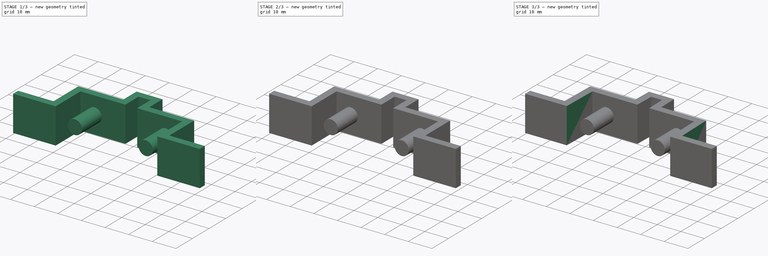
[diagram: build sequence overview — one tinted view per stage of 3, left to right]
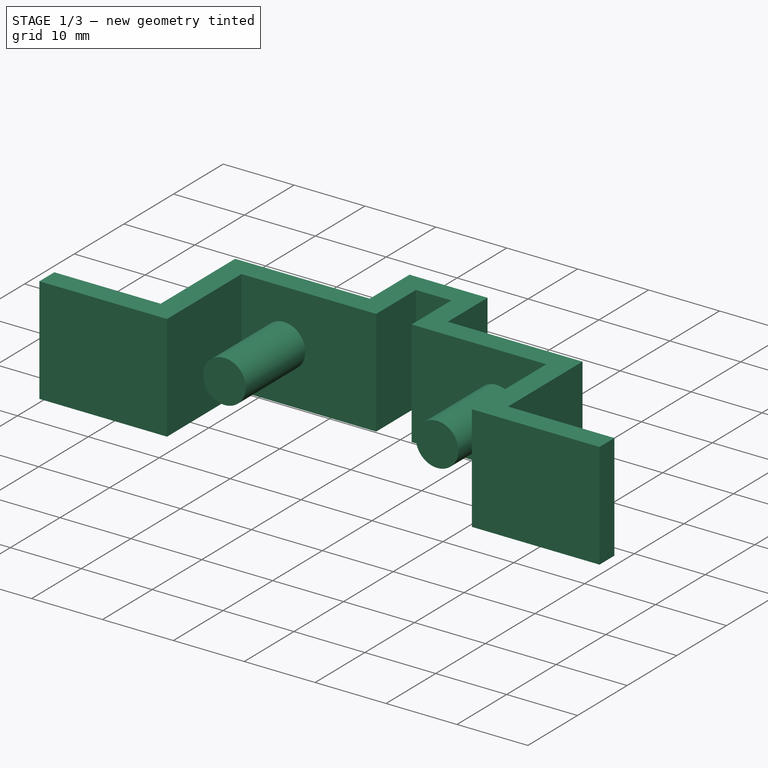
[diagram: stage 1 of 3 — iso view after this stage's code; geometry added in this stage tinted green]
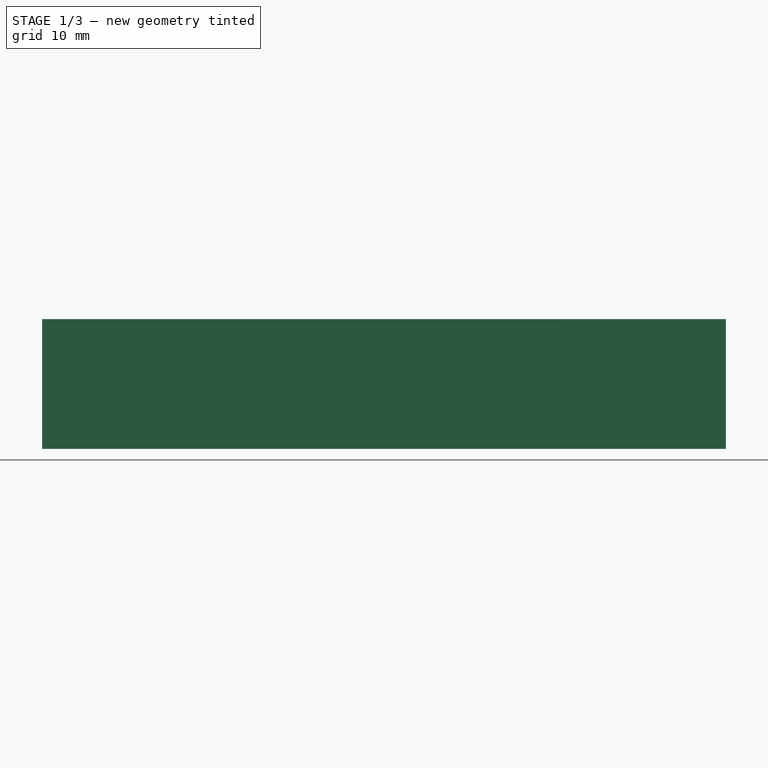
[diagram: stage 1 of 3 — front view after this stage's code; geometry added in this stage tinted green]
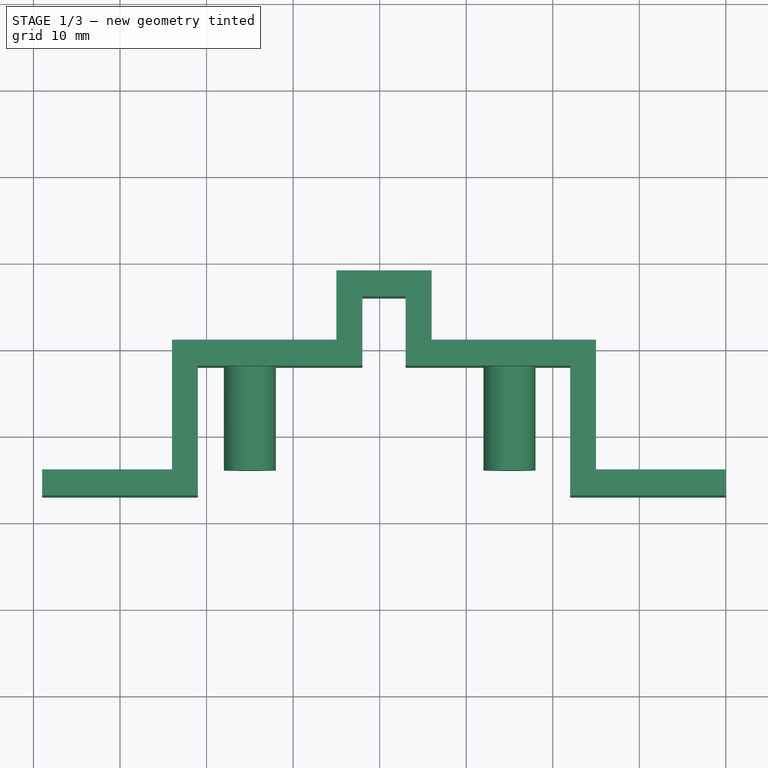
[diagram: stage 1 of 3 — top view after this stage's code; geometry added in this stage tinted green]
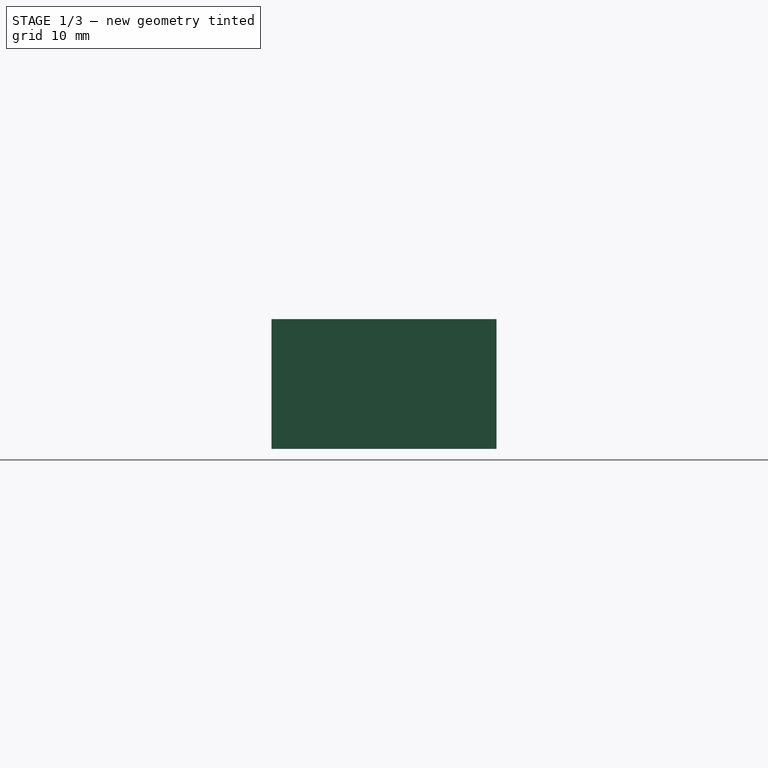
[diagram: stage 1 of 3 — right view after this stage's code; geometry added in this stage tinted green]
FCSTD DOCUMENT  (FreeCAD 0.16R6698 (Git))
Label: Plastic_Bus_Bar
License: All rights reserved
LicenseURL: http://en.wikipedia.org/wiki/All_rights_reserved
objects: Sketcher::SketchObject×3, PartDesign::Pad×2, PartDesign::Draft×2, PartDesign::Pocket×1
note: 11 computed .brp shape members not serialized (recipe doc carries the construction recipe); baked Part::Feature solids carry a one-line shape summary decoded from their .brp

FEATURE [Sketcher::SketchObject] Sketch
  sketch-geometry (20):
    g0: LineSegment StartX=-5 StartY=9 StartZ=0 EndX=6 EndY=9 EndZ=0
    g1: LineSegment StartX=3 StartY=6 StartZ=0 EndX=-2 EndY=6 EndZ=0
    g2: LineSegment StartX=40 StartY=-14 StartZ=0 EndX=40 EndY=-17 EndZ=0
    g3: LineSegment StartX=40 StartY=-17 StartZ=0 EndX=22 EndY=-17 EndZ=0
    g4: LineSegment StartX=-2 StartY=6 StartZ=0 EndX=-2 EndY=-2 EndZ=0
    g5: LineSegment StartX=-5 StartY=1 StartZ=0 EndX=-5 EndY=9 EndZ=0
    g6: LineSegment StartX=-21 StartY=-2 StartZ=0 EndX=-2 EndY=-2 EndZ=0
    g7: LineSegment StartX=6 StartY=1 StartZ=0 EndX=6 EndY=9 EndZ=0
    g8: LineSegment StartX=3 StartY=-2 StartZ=0 EndX=22 EndY=-2 EndZ=0
    g9: LineSegment StartX=25 StartY=1 StartZ=0 EndX=6 EndY=1 EndZ=0
    g10: LineSegment StartX=3 StartY=6 StartZ=0 EndX=3 EndY=-2 EndZ=0
    g11: LineSegment StartX=25 StartY=-14 StartZ=0 EndX=40 EndY=-14 EndZ=0
    g12: LineSegment StartX=-5 StartY=1 StartZ=0 EndX=-24 EndY=1 EndZ=0
    g13: LineSegment StartX=22 StartY=-2 StartZ=0 EndX=22 EndY=-17 EndZ=0
    g14: LineSegment StartX=25 StartY=1 StartZ=0 EndX=25 EndY=-14 EndZ=0
    g15: LineSegment StartX=-24 StartY=1 StartZ=0 EndX=-24 EndY=-14 EndZ=0
    g16: LineSegment StartX=-24 StartY=-14 StartZ=0 EndX=-39 EndY=-14 EndZ=0
    g17: LineSegment StartX=-39 StartY=-14 StartZ=0 EndX=-39 EndY=-17 EndZ=0
    g18: LineSegment StartX=-39 StartY=-17 StartZ=0 EndX=-21 EndY=-17 EndZ=0
    g19: LineSegment StartX=-21 StartY=-17 StartZ=0 EndX=-21 EndY=-2 EndZ=0
  constraints (62):
    c: Horizontal(g0)
    c: Horizontal(g1)
    c: Coincident(g2,g3)
    c: Horizontal(g3)
    c: Vertical(g2)
    c: Vertical(g4)
    c: Vertical(g5)
    c: Horizontal(g6)
    c: Vertical(g7)
    c: Coincident(g10,g8)
    c: Horizontal(g8)
    c: Horizontal(g9)
    c: Vertical(g10)
    c: Coincident(g4,g1)
    c: Coincident(g7,g9)
    c: Coincident(g11,g2)
    c: Horizontal(g11)
    c: Coincident(g12,g5)
    c: Horizontal(g12)
    c: DistanceX(g9,g9) = 19
    c: DistanceX(g8,g8) = 19
    c: DistanceX(g8,g7) = 3
    c: Coincident(g10,g1)
    c: Coincident(g13,g3)
    c: Vertical(g13)
    c: Coincident(g4,g6)
    c: DistanceY(g13,g14) = 3
    c: DistanceY(g8,g9) = 3
    c: DistanceY(g1,g0) = 3
    c: DistanceX(g0,g1) = 3
    c: DistanceY(g4,g5) = 3
    c: DistanceY(g3,g11) = 3
    c: Coincident(g14,g11)
    c: Vertical(g14)
    c: DistanceX(g3,g11) = 3
    c: DistanceX(g12,g12) = 19
    c: DistanceX(g6,g6) = 19
    c: DistanceX(g0,g0) = 11
    c: DistanceY(g7,g7) = 8
    c: DistanceY(g5,g5) = 8
    c: DistanceX(g11,g11) = 15
    c: Vertical(g15)
    c: Coincident(g15,g16)
    c: Horizontal(g16)
    c: Coincident(g16,g17)
    c: Vertical(g17)
    c: Coincident(g17,g18)
    c: Horizontal(g18)
    c: Coincident(g18,g19)
    c: Vertical(g19)
    c: DistanceX(g15,g19) = 3
    c: DistanceY(g17,g17) = 3
    c: DistanceX(g16,g16) = 15
    c: DistanceY(g18,g6) = 15
    c: DistanceY(g3,g8) = 15
    c: Coincident(g5,g0)
    c: Coincident(g7,g0)
    c: DistanceX(g4,g-1) = 2
    c: DistanceY(g18,g-1) = 17
    c: Coincident(g19,g6)
    c: Coincident(g12,g15)
    c: Coincident(g8,g13)
FEATURE [PartDesign::Pad] Pad
  Length = 15
  Length2 = 100
  Sketch = -> Sketch
  Type = 0
FEATURE [Sketcher::SketchObject] Sketch001
  Placement = pos=(0,-2,0) rot=(1,0,0;1.5708rad)
  Support = -> Pad [Face14]
  sketch-geometry (2):
    g0: Circle CenterX=-15 CenterY=7.5 CenterZ=0 NormalX=0 NormalY=0 NormalZ=1 Radius=3
    g1: Circle CenterX=15 CenterY=7.5 CenterZ=0 NormalX=0 NormalY=0 NormalZ=1 Radius=3
  constraints (6):
    c: Radius(g1) = 3
    c: Equal(g1,g0)
    c: DistanceX(g0,g1) = 30
    c: DistanceX(g-1,g1) = 15
    c: DistanceY(g0,g1) = 0
    c: DistanceY(g-1,g1) = 7.5
FEATURE [PartDesign::Pad] Pad001
  Length = 12
  Length2 = 100
  Sketch = -> Sketch001
  Type = 0
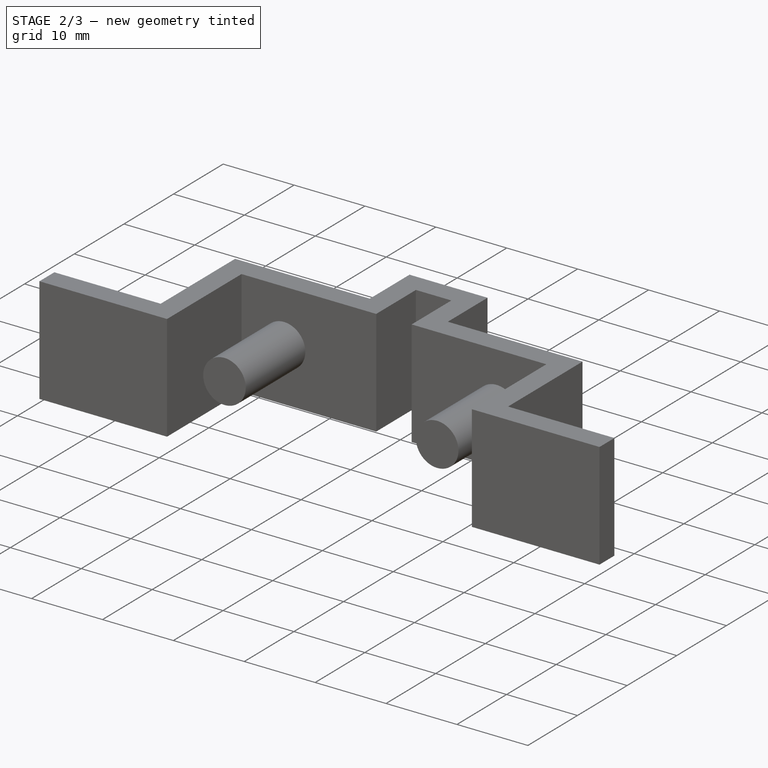
[diagram: stage 2 of 3 — iso view after this stage's code; geometry added in this stage tinted green]
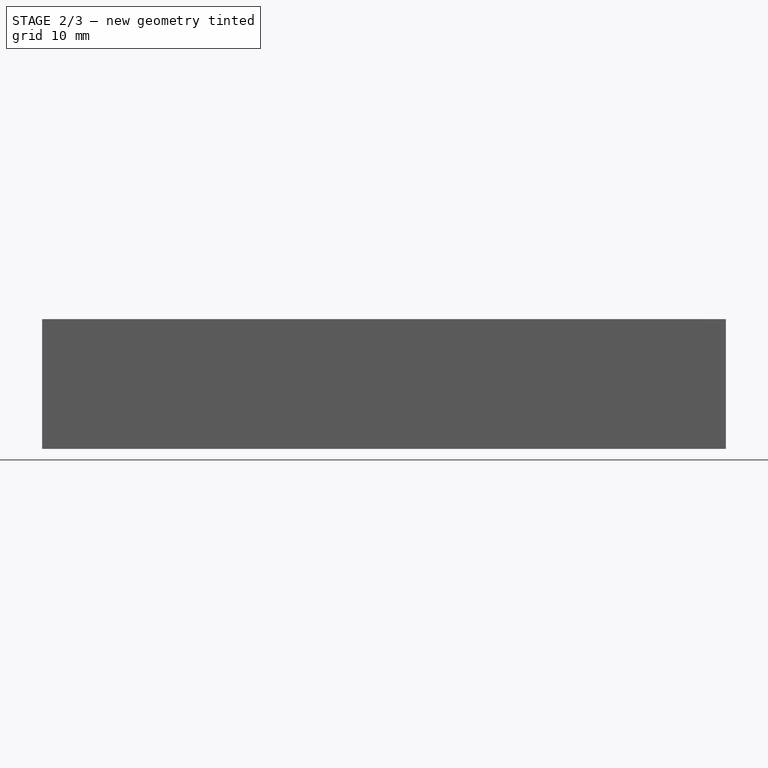
[diagram: stage 2 of 3 — front view after this stage's code; geometry added in this stage tinted green]
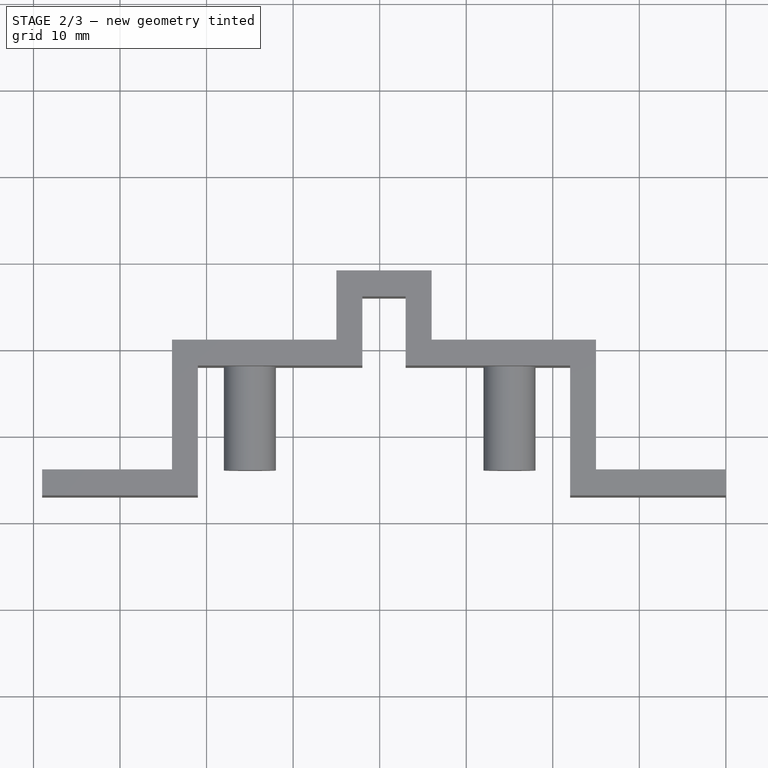
[diagram: stage 2 of 3 — top view after this stage's code; geometry added in this stage tinted green]
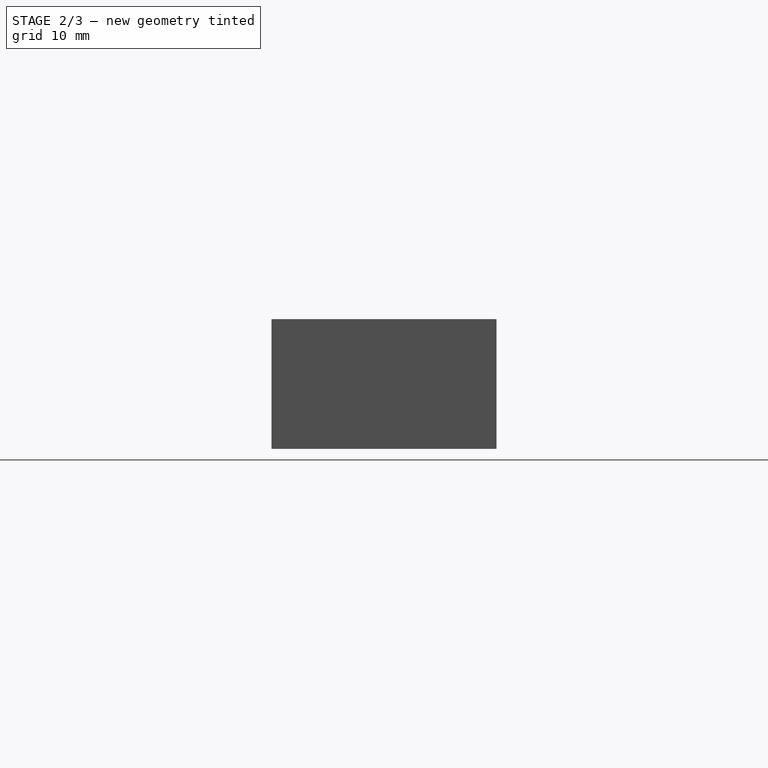
[diagram: stage 2 of 3 — right view after this stage's code; geometry added in this stage tinted green]
FEATURE [Sketcher::SketchObject] Sketch002
  Placement = pos=(0,1,0) rot=(0,0.707107,0.707107;3.14159rad)
  Support = -> Pad001 [Face2]
  sketch-geometry (2):
    g0: Circle CenterX=-15 CenterY=7.5 CenterZ=0 NormalX=0 NormalY=0 NormalZ=1 Radius=1.5
    g1: Circle CenterX=15 CenterY=7.5 CenterZ=0 NormalX=0 NormalY=0 NormalZ=1 Radius=1.5
  constraints (6):
    c: Radius(g0) = 1.5
    c: Equal(g0,g1)
    c: DistanceX(g0,g1) = 30
    c: DistanceX(g-1,g1) = 15
    c: DistanceY(g1,g0) = 0
    c: DistanceY(g-1,g0) = 7.5
FEATURE [PartDesign::Pocket] Pocket
  Length = 10
  Sketch = -> Sketch002
  Type = 0
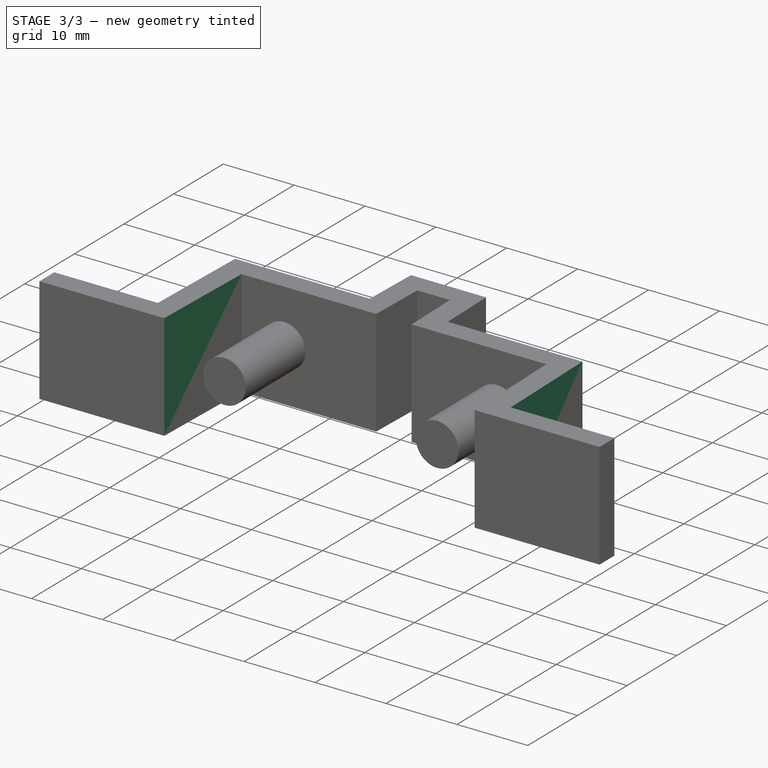
[diagram: stage 3 of 3 — iso view after this stage's code; geometry added in this stage tinted green]
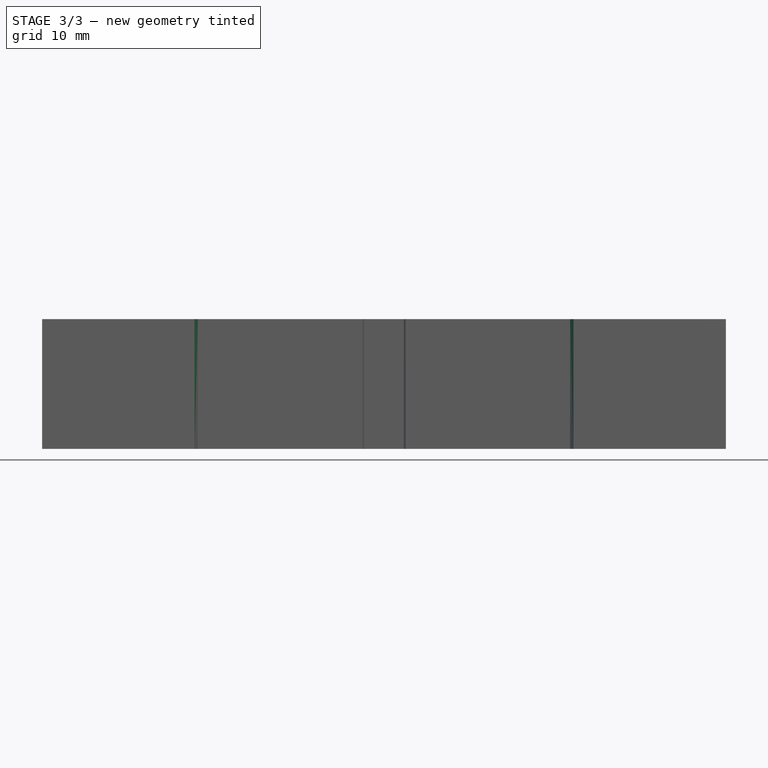
[diagram: stage 3 of 3 — front view after this stage's code; geometry added in this stage tinted green]
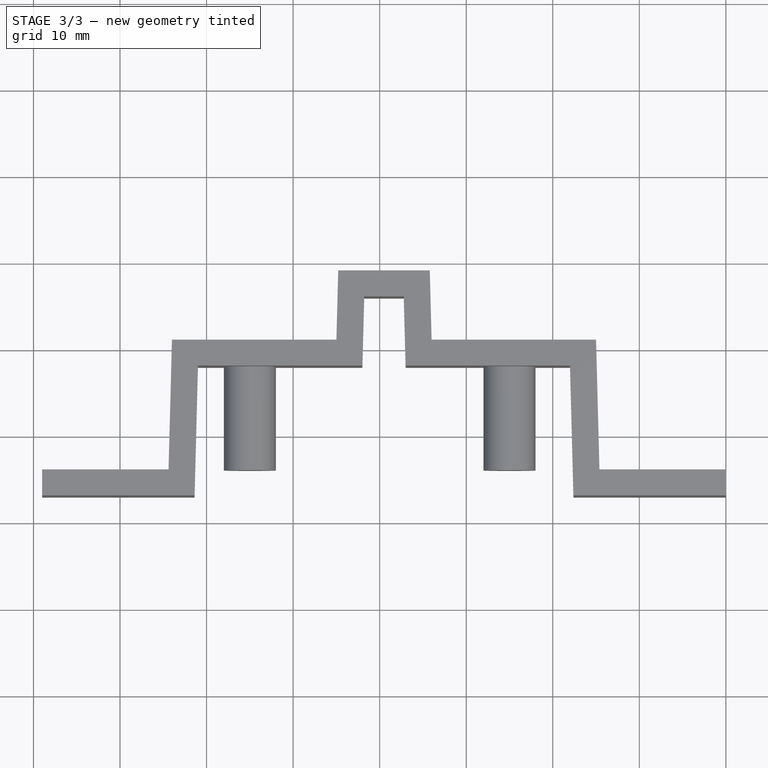
[diagram: stage 3 of 3 — top view after this stage's code; geometry added in this stage tinted green]
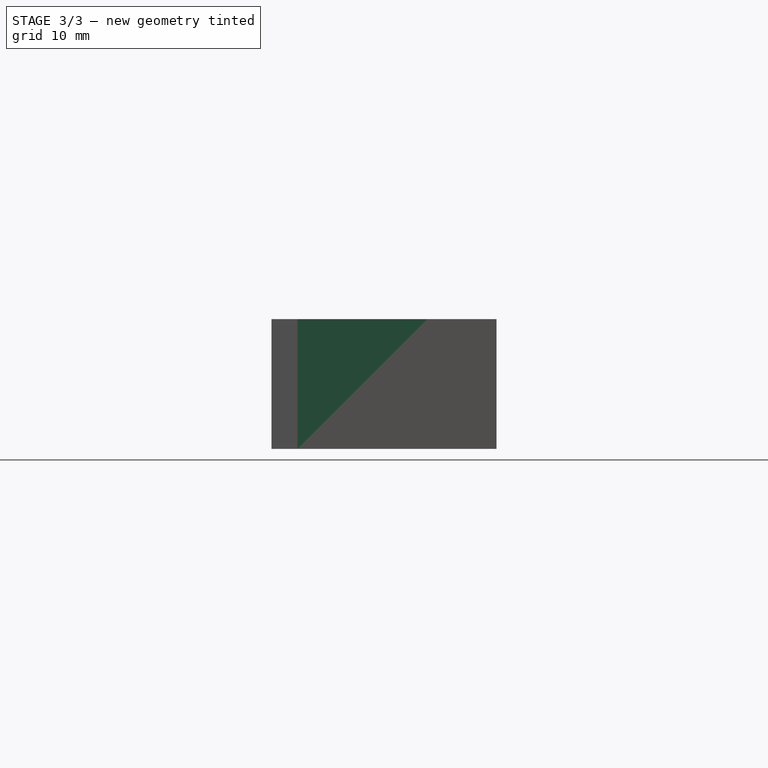
[diagram: stage 3 of 3 — right view after this stage's code; geometry added in this stage tinted green]
FEATURE [PartDesign::Draft] Draft
  Angle = 1.5
  Base = -> Pocket [Face16,Face18,Face14,Face20]
  NeutralPlane = -> Pocket [Face19]
  Reversed = true
FEATURE [PartDesign::Draft] Draft001
  Angle = 1.5
  Base = -> Draft [Face10,Face8,Face1,Face6]
  NeutralPlane = -> Draft [Face2]
  Reversed = true
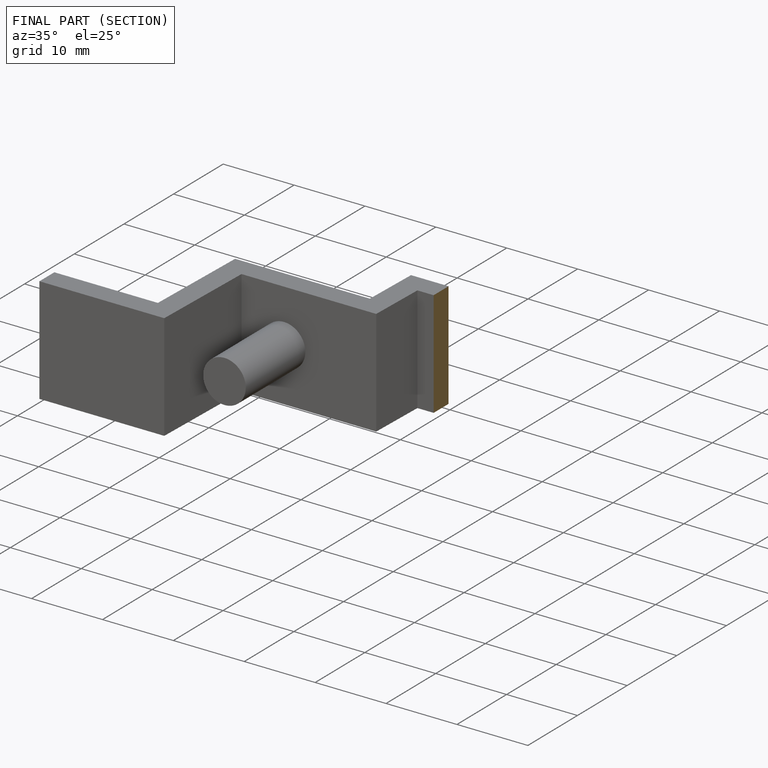
[diagram: finished part — half-section view (interior)]
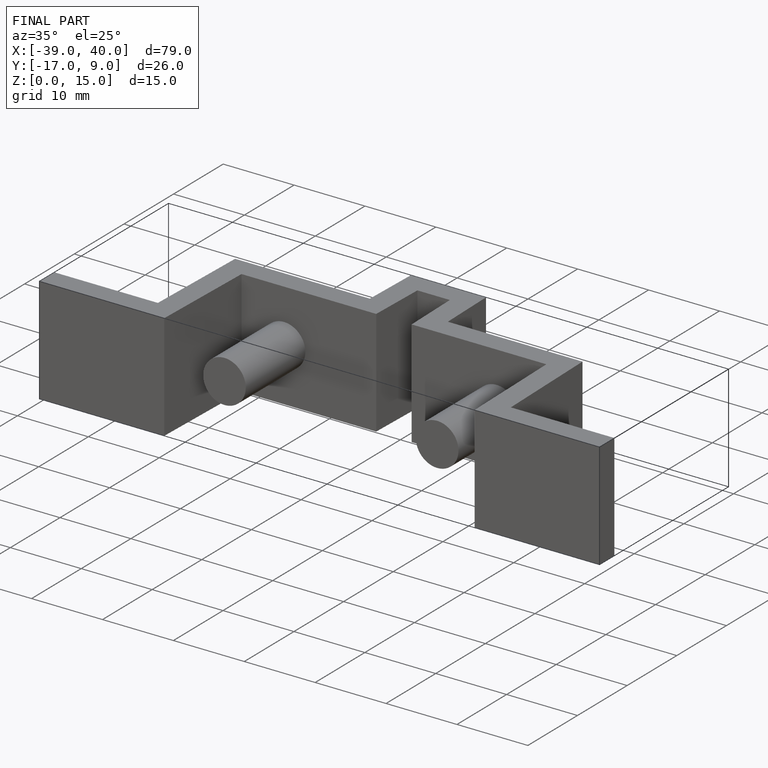
[diagram: finished part — iso view with bounding-box wireframe]
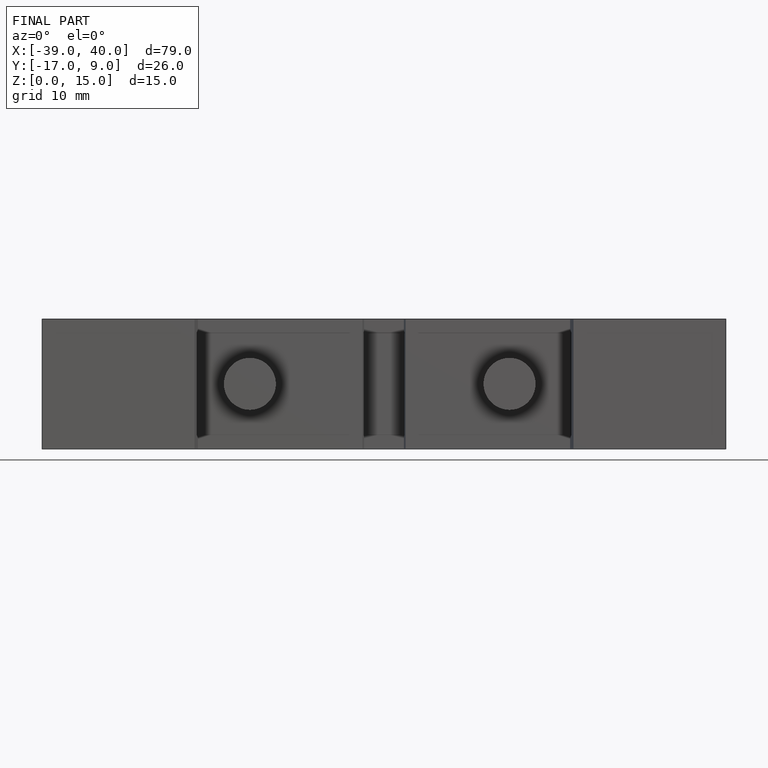
[diagram: finished part — front view with bounding-box wireframe]
